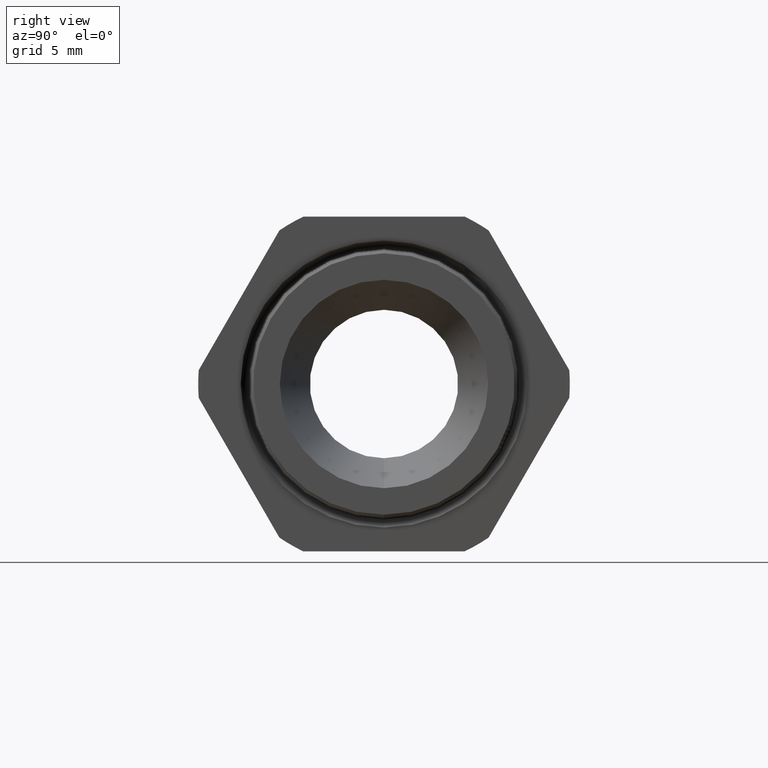
[diagram: clean part render]
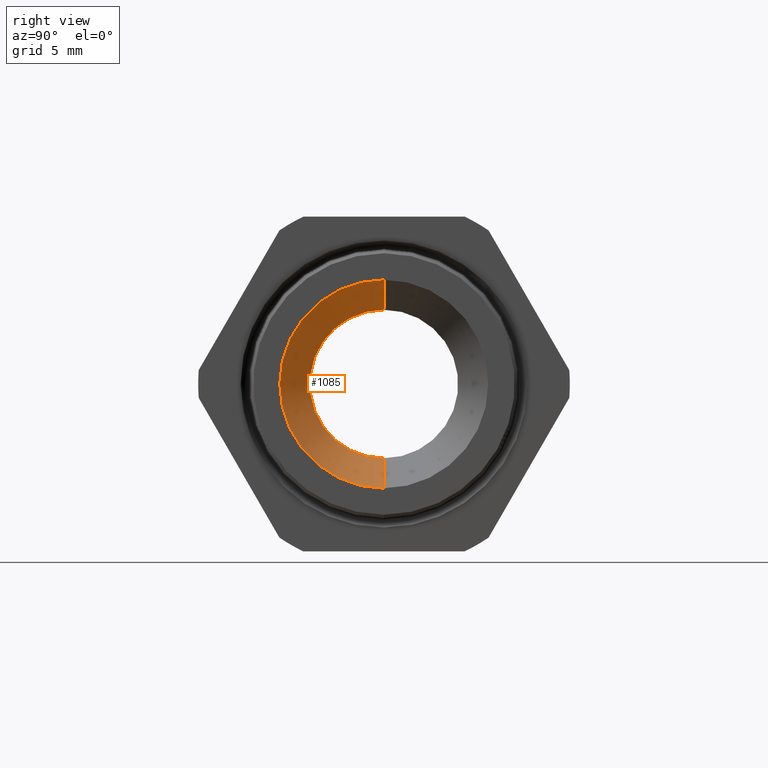
[diagram: same view with one face highlighted and labeled with its STEP entity id]
A machine part, right view. The second image highlights one B-rep face of the part: STEP entity #1085.
In plain terms, the highlighted conical surface has half-angle 5.421 deg.
Its self-contained STEP definition (entity closure, byte-faithful):
#1013 = ORIENTED_EDGE ( 'NONE', *, *, #1024, .F. ) ;
#1022 = VERTEX_POINT ( 'NONE', #2238 ) ;
#1024 = EDGE_CURVE ( 'NONE', #1022, #1066, #2233, .T. ) ;
#1046 = EDGE_CURVE ( 'NONE', #1066, #1072, #2321, .T. ) ;
#1058 = ORIENTED_EDGE ( 'NONE', *, *, #1046, .F. ) ;
#1062 = EDGE_CURVE ( 'NONE', #1022, #1077, #2292, .T. ) ;
#1065 = ORIENTED_EDGE ( 'NONE', *, *, #1062, .T. ) ;
#1066 = VERTEX_POINT ( 'NONE', #2347 ) ;
#1071 = EDGE_CURVE ( 'NONE', #1077, #1072, #2343, .T. ) ;
#1072 = VERTEX_POINT ( 'NONE', #2334 ) ;
#1073 = ORIENTED_EDGE ( 'NONE', *, *, #1071, .T. ) ;
#1077 = VERTEX_POINT ( 'NONE', #2329 ) ;
#1085 = ADVANCED_FACE ( 'NONE', ( #2326 ), #2385, .F. ) ;
#1090 = EDGE_LOOP ( 'NONE', ( #1013, #1065, #1073, #1058 ) ) ;
#2230 = DIRECTION ( 'NONE',  ( 1.000000000000000000, 0.0000000000000000000, 0.0000000000000000000 ) ) ;
#2231 = CARTESIAN_POINT ( 'NONE',  ( -0.7210236220472440200, 0.0000000000000000000, 0.0000000000000000000 ) ) ;
#2232 = AXIS2_PLACEMENT_3D ( 'NONE', #2231, #2230, #2291 ) ;
#2233 = CIRCLE ( 'NONE', #2232, 0.2349999999999999600 ) ;
#2238 = CARTESIAN_POINT ( 'NONE',  ( -0.7210236220472440200, 2.877919977996279200E-017, 0.2349999999999999600 ) ) ;
#2291 = DIRECTION ( 'NONE',  ( 0.0000000000000000000, 0.0000000000000000000, -1.000000000000000000 ) ) ;
#2292 = LINE ( 'NONE', #2354, #2353 ) ;
#2315 = DIRECTION ( 'NONE',  ( 0.9955269167398553800, 0.0000000000000000000, -0.09447834697133933300 ) ) ;
#2316 = VECTOR ( 'NONE', #2315, 39.37007874015748100 ) ;
#2317 = CARTESIAN_POINT ( 'NONE',  ( -0.7210236220472440200, 0.0000000000000000000, -0.2349999999999999600 ) ) ;
#2321 = LINE ( 'NONE', #2317, #2316 ) ;
#2326 = FACE_OUTER_BOUND ( 'NONE', #1090, .T. ) ;
#2329 = CARTESIAN_POINT ( 'NONE',  ( 0.2800000000000000300, 4.041334437186265900E-017, 0.3300000000000000200 ) ) ;
#2334 = CARTESIAN_POINT ( 'NONE',  ( 0.2800000000000000300, 0.0000000000000000000, -0.3300000000000000200 ) ) ;
#2335 = DIRECTION ( 'NONE',  ( 0.0000000000000000000, 0.0000000000000000000, -1.000000000000000000 ) ) ;
#2336 = DIRECTION ( 'NONE',  ( 1.000000000000000000, 0.0000000000000000000, 0.0000000000000000000 ) ) ;
#2337 = CARTESIAN_POINT ( 'NONE',  ( 0.2800000000000000300, 0.0000000000000000000, 0.0000000000000000000 ) ) ;
#2338 = AXIS2_PLACEMENT_3D ( 'NONE', #2337, #2336, #2335 ) ;
#2343 = CIRCLE ( 'NONE', #2338, 0.3300000000000000200 ) ;
#2347 = CARTESIAN_POINT ( 'NONE',  ( -0.7210236220472440200, 0.0000000000000000000, -0.2349999999999999600 ) ) ;
#2352 = DIRECTION ( 'NONE',  ( 0.9955269167398553800, 1.157026052071837500E-017, 0.09447834697133933300 ) ) ;
#2353 = VECTOR ( 'NONE', #2352, 39.37007874015748100 ) ;
#2354 = CARTESIAN_POINT ( 'NONE',  ( -0.7210236220472440200, 2.877919977996279200E-017, 0.2349999999999999600 ) ) ;
#2381 = DIRECTION ( 'NONE',  ( 0.0000000000000000000, 0.0000000000000000000, -1.000000000000000000 ) ) ;
#2382 = DIRECTION ( 'NONE',  ( 1.000000000000000000, 0.0000000000000000000, 0.0000000000000000000 ) ) ;
#2383 = CARTESIAN_POINT ( 'NONE',  ( -0.7210236220472440200, 0.0000000000000000000, 0.0000000000000000000 ) ) ;
#2384 = AXIS2_PLACEMENT_3D ( 'NONE', #2383, #2382, #2381 ) ;
#2385 = CONICAL_SURFACE ( 'NONE', #2384, 0.2349999999999999600, 0.09461946934192137800 ) ;